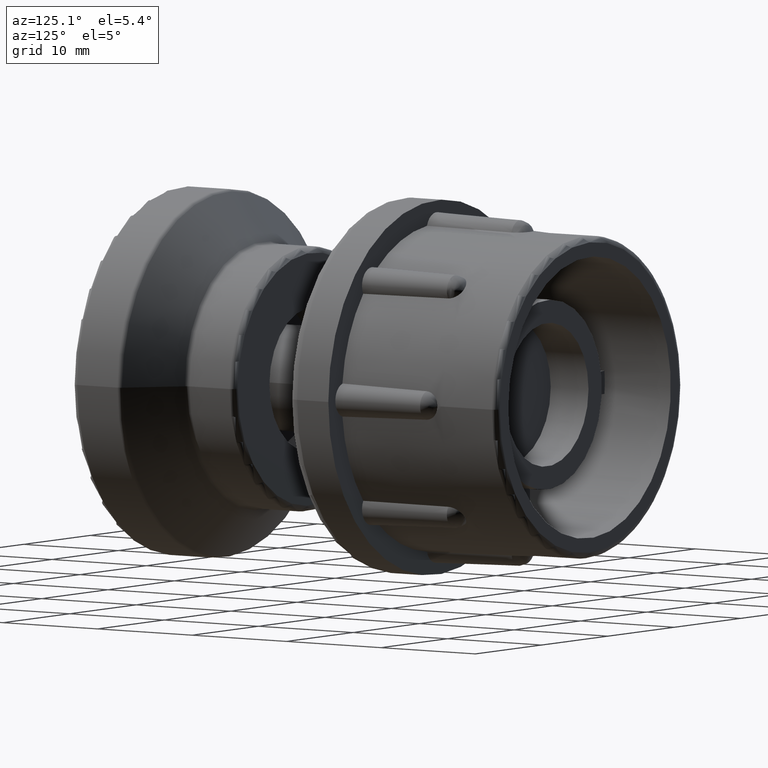
[diagram: clean part render]
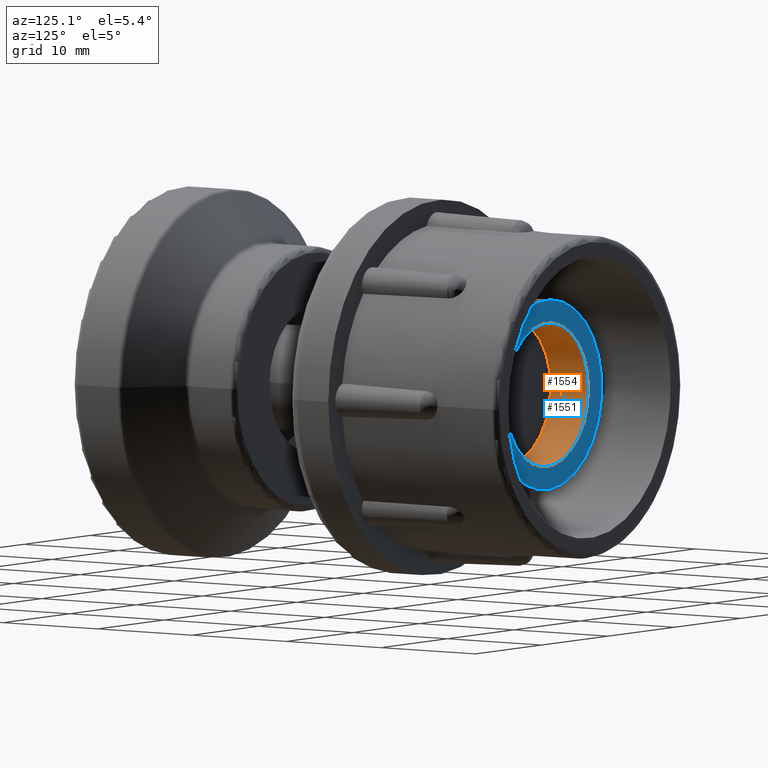
[diagram: same view with the hole feature highlighted: cylindrical wall and planar end face, labeled with their STEP entity ids]
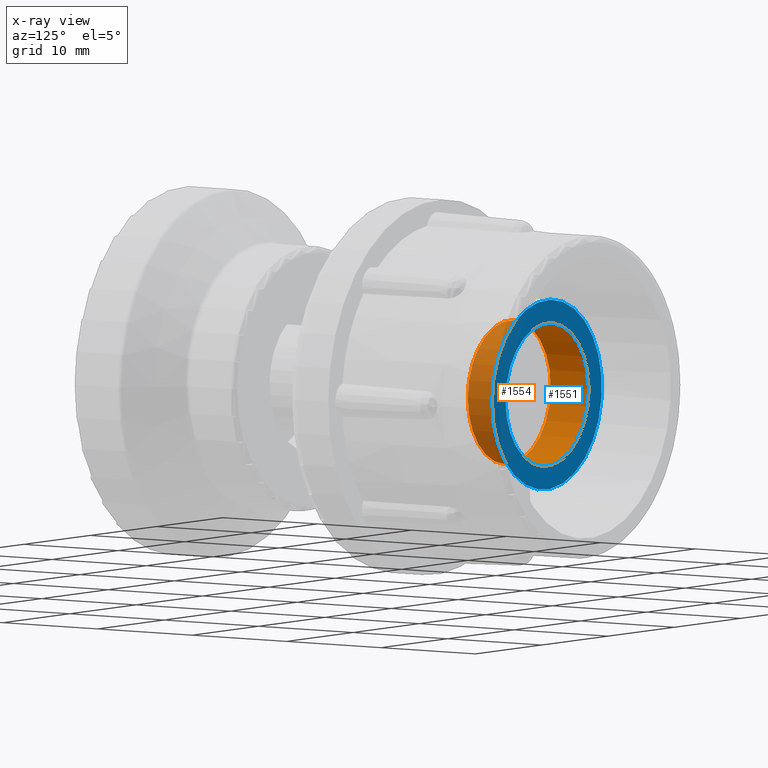
[diagram: x-ray of the same camera — body ghosted, the hole faces saturated]
A machine part, auxiliary view. The highlighted faces form one hole feature of diameter 12.5 mm: the cylindrical wall (entity #1554, orange) and its adjacent planar end face (entity #1551, blue) — they share a circular edge in the B-rep.
The next image is the same camera in x-ray (body ghosted, the hole faces saturated) — the bore reads through the body.
Wall:
#72=FACE_BOUND('',#426,.T.);
#162=CIRCLE('',#1727,6.25);
#163=CIRCLE('',#1730,6.25);
#305=FACE_OUTER_BOUND('',#425,.T.);
#425=EDGE_LOOP('',(#1418));
#426=EDGE_LOOP('',(#1419));
#787=VERTEX_POINT('',#3428);
#788=VERTEX_POINT('',#3432);
#1004=EDGE_CURVE('',#787,#787,#162,.T.);
#1005=EDGE_CURVE('',#788,#788,#163,.T.);
#1418=ORIENTED_EDGE('',*,*,#1004,.T.);
#1419=ORIENTED_EDGE('',*,*,#1005,.F.);
#1463=CYLINDRICAL_SURFACE('',#1731,6.25);
#1554=ADVANCED_FACE('',(#305,#72),#1463,.F.);
#1727=AXIS2_PLACEMENT_3D('',#3429,#2145,#2146);
#1730=AXIS2_PLACEMENT_3D('',#3433,#2151,#2152);
#1731=AXIS2_PLACEMENT_3D('',#3434,#2153,#2154);
#2145=DIRECTION('center_axis',(-1.20292798384364E-16,1.,0.));
#2146=DIRECTION('ref_axis',(1.,1.20292798384364E-16,0.));
#2151=DIRECTION('center_axis',(-1.20292798384364E-16,1.,0.));
#2152=DIRECTION('ref_axis',(1.,1.20292798384364E-16,0.));
#2153=DIRECTION('center_axis',(-1.20292798384364E-16,1.,0.));
#2154=DIRECTION('ref_axis',(1.,2.04487794139683E-16,0.));
#3428=CARTESIAN_POINT('',(6.25,16.,0.));
#3429=CARTESIAN_POINT('Origin',(5.41317592729638E-16,16.,0.));
#3432=CARTESIAN_POINT('',(6.25,12.,0.));
#3433=CARTESIAN_POINT('Origin',(1.0224887862671E-15,12.,0.));
#3434=CARTESIAN_POINT('Origin',(7.81903189498367E-16,14.,0.));
End face:
#69=FACE_BOUND('',#420,.T.);
#154=CIRCLE('',#1710,8.25);
#162=CIRCLE('',#1727,6.25);
#212=PLANE('',#1726);
#302=FACE_OUTER_BOUND('',#419,.T.);
#419=EDGE_LOOP('',(#1397));
#420=EDGE_LOOP('',(#1398));
#780=VERTEX_POINT('',#3398);
#787=VERTEX_POINT('',#3428);
#990=EDGE_CURVE('',#780,#780,#154,.T.);
#1004=EDGE_CURVE('',#787,#787,#162,.T.);
#1397=ORIENTED_EDGE('',*,*,#990,.T.);
#1398=ORIENTED_EDGE('',*,*,#1004,.F.);
#1551=ADVANCED_FACE('',(#302,#69),#212,.F.);
#1710=AXIS2_PLACEMENT_3D('',#3399,#2105,#2106);
#1726=AXIS2_PLACEMENT_3D('',#3427,#2143,#2144);
#1727=AXIS2_PLACEMENT_3D('',#3429,#2145,#2146);
#2105=DIRECTION('center_axis',(-1.20292798384364E-16,1.,0.));
#2106=DIRECTION('ref_axis',(-1.,-9.25185853854297E-17,0.));
#2143=DIRECTION('center_axis',(1.20292798384364E-16,-1.,0.));
#2144=DIRECTION('ref_axis',(0.,0.,-1.));
#2145=DIRECTION('center_axis',(-1.20292798384364E-16,1.,0.));
#2146=DIRECTION('ref_axis',(1.,1.20292798384364E-16,0.));
#3398=CARTESIAN_POINT('',(8.25,16.,-1.01033360929657E-15));
#3399=CARTESIAN_POINT('Origin',(-8.32759823420201E-16,16.,0.));
#3427=CARTESIAN_POINT('Origin',(12.25,16.,0.));
#3428=CARTESIAN_POINT('',(6.25,16.,0.));
#3429=CARTESIAN_POINT('Origin',(5.41317592729638E-16,16.,0.));